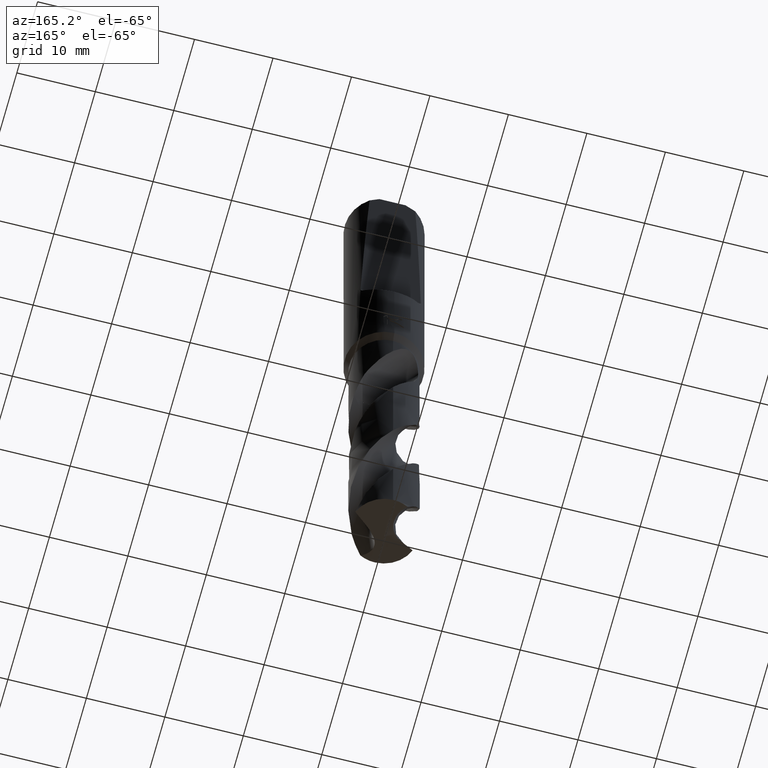
[diagram: clean part render]
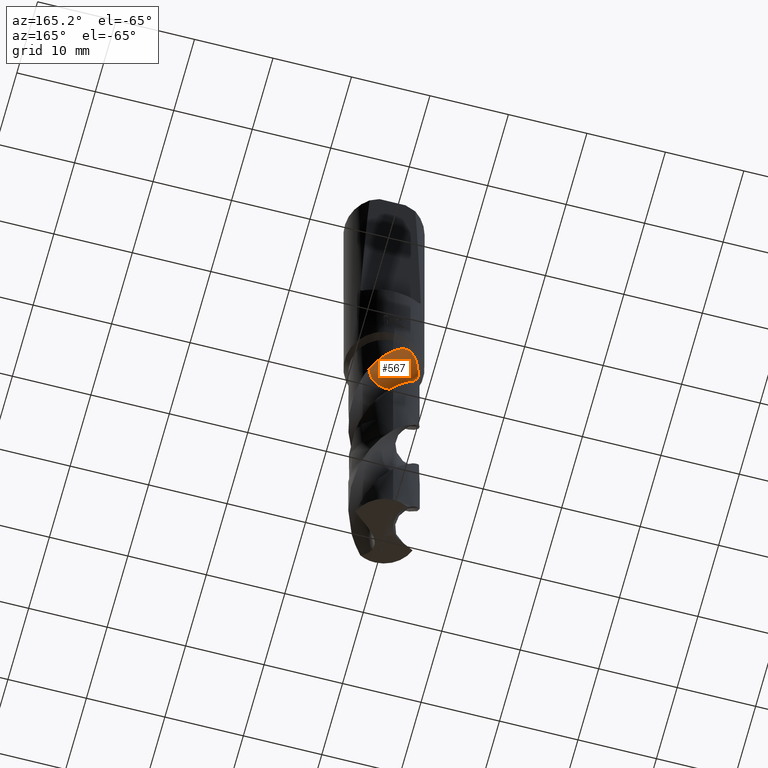
[diagram: same view with one face highlighted and labeled with its STEP entity id]
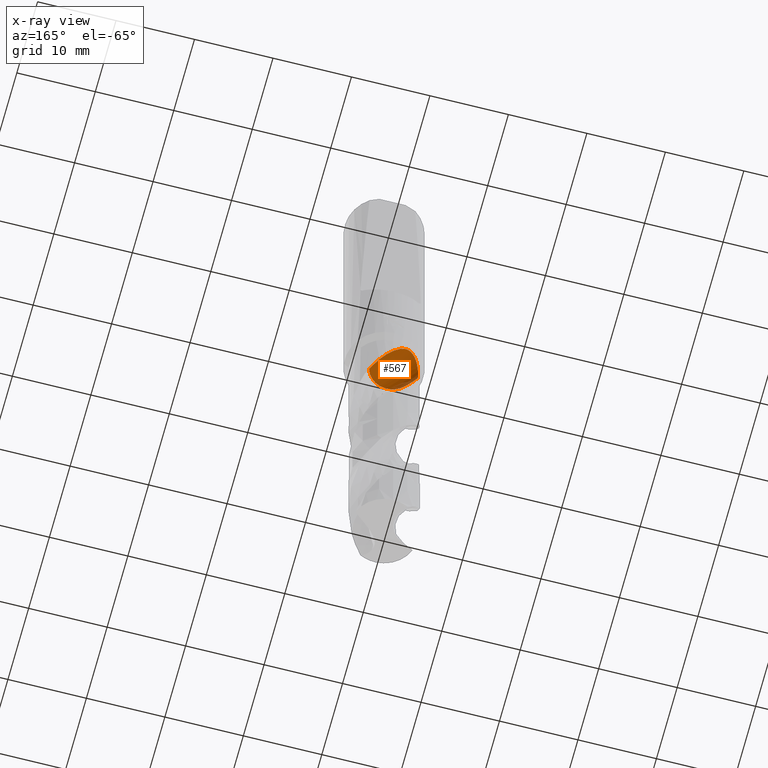
[diagram: x-ray of the same camera — body ghosted, the highlighted face saturated]
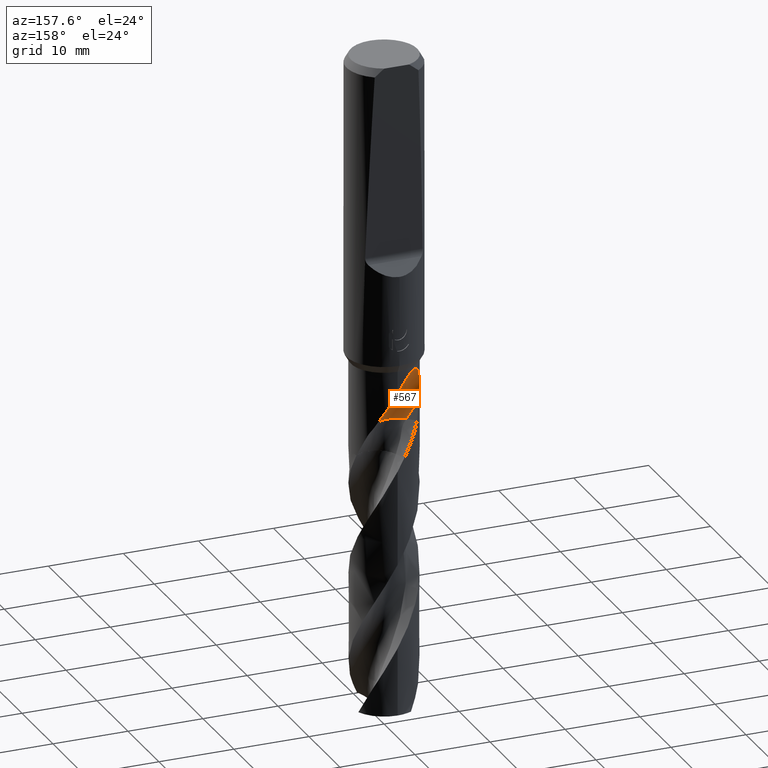
[diagram: same view with one face highlighted and labeled with its STEP entity id]
A machine part, auxiliary view. The second image highlights one B-rep face of the part: STEP entity #567.
The next image is the same camera in x-ray: the body ghosted, the highlighted face saturated — about 0% of this face is hidden behind the body in this view.
A second angle (auxiliary view) of the same face is appended — the face is thin or edge-on in the first view.
In plain terms, the highlighted face is a SurfaceOfRevolution surface.
Its self-contained STEP definition (entity closure, byte-faithful):
#361=VERTEX_POINT('',#931);
#367=VERTEX_POINT('',#937);
#505=VERTEX_POINT('',#1084);
#529=EDGE_CURVE('',#605,#505,#1109,.T.);
#567=ADVANCED_FACE('',(#1152),#1153,.F.);
#575=EDGE_CURVE('',#843,#361,#1161,.T.);
#605=VERTEX_POINT('',#1193);
#651=EDGE_CURVE('',#605,#367,#1243,.T.);
#811=EDGE_CURVE('',#505,#361,#1422,.T.);
#837=EDGE_CURVE('',#367,#843,#1451,.T.);
#843=VERTEX_POINT('',#1457);
#931=CARTESIAN_POINT('',(-3.58002551848704,2.5580104157297,-46.2484469929052));
#937=CARTESIAN_POINT('',(-0.4600083268246,1.35627961253618,-48.6578));
#1084=CARTESIAN_POINT('',(-1.29923035220927E-012,4.4,-43.9806989142759));
#1109=B_SPLINE_CURVE_WITH_KNOTS('',3,(#4983,#4984,#4985,#4986,#4987,#4988,#4989,#4990,#4991,#4992,#4993,#4994,#4995,#4996,#4997,#4998,#4999,#5000,#5001,#5002,#5003,#5004,#5005,#5006,#5007,#5008,#5009,#5010,#5011,#5012),.UNSPECIFIED.,.F.,.F.,(4,2,2,2,2,2,2,2,2,2,2,2,2,2,4),(0.0,2.15575313888055,3.33284473582783,4.39899348881997,5.63760174678789,7.12545374593737,8.41500043042723,8.99937898129075,9.4264884187666,9.8306588458001,10.3433731229215,11.0934949025042,12.1598812119526,12.8577163387087,13.5910936484015),.UNSPECIFIED.);
#1152=FACE_OUTER_BOUND('',#5132,.T.);
#1153=SURFACE_OF_REVOLUTION('',#5133,#5134);
#1161=CIRCLE('',#5154,19.1191435449186);
#1193=CARTESIAN_POINT('',(2.80374486055088,3.39101972228628,-48.6578));
#1243=CIRCLE('',#5474,2.93333333);
#1422=B_SPLINE_CURVE_WITH_KNOTS('',3,(#8122,#8123,#8124,#8125,#8126,#8127,#8128,#8129,#8130,#8131,#8132,#8133,#8134,#8135,#8136,#8137,#8138,#8139,#8140,#8141,#8142,#8143,#8144,#8145,#8146,#8147,#8148,#8149,#8150,#8151),.UNSPECIFIED.,.F.,.F.,(4,2,2,2,2,2,2,2,2,2,2,2,2,2,4),(0.0,2.15575313888055,3.33284473582783,4.39899348881997,5.63760174678789,7.12545374593737,8.41500043042723,8.99937898129075,9.4264884187666,9.8306588458001,10.3433731229215,11.0934949025042,12.1598812119526,12.8577163387087,13.5910936484015),.UNSPECIFIED.);
#1451=CIRCLE('',#8530,2.93333333);
#1457=CARTESIAN_POINT('',(-2.07417988905281,2.1791534409472,-48.6578));
#4983=CARTESIAN_POINT('',(2.80374486055088,3.39101972228628,-48.6578));
#4984=CARTESIAN_POINT('',(2.51350494731927,3.63099434104232,-48.0458061391126));
#4985=CARTESIAN_POINT('',(2.17979483710909,3.84431509835622,-47.4752303734491));
#4986=CARTESIAN_POINT('',(1.59790390863063,4.10578444379899,-46.5220445771286));
#4987=CARTESIAN_POINT('',(1.38851221785643,4.18099929289327,-46.1866817704438));
#4988=CARTESIAN_POINT('',(0.983156375472417,4.29341047373774,-45.5375063782041));
#4989=CARTESIAN_POINT('',(0.789002125642251,4.33312507625318,-45.2267196876942));
#4990=CARTESIAN_POINT('',(0.368739975777151,4.39044303258426,-44.5568919256811));
#4991=CARTESIAN_POINT('',(0.139121621929852,4.40389969584931,-44.192607771954));
#4992=CARTESIAN_POINT('',(-0.370802025101311,4.39317357640931,-43.4132836749414));
#4993=CARTESIAN_POINT('',(-0.67313525249552,4.3599980635326,-42.9698397246683));
#4994=CARTESIAN_POINT('',(-1.25614576165957,4.22601958514953,-42.238631296681));
#4995=CARTESIAN_POINT('',(-1.57870209371613,4.12394494139918,-41.881830271775));
#4996=CARTESIAN_POINT('',(-2.06688798948351,3.88800265043549,-41.5477219620063));
#4997=CARTESIAN_POINT('',(-2.22848079933628,3.7989289828202,-41.4651504079955));
#4998=CARTESIAN_POINT('',(-2.51162854133558,3.6155241182648,-41.4017206984103));
#4999=CARTESIAN_POINT('',(-2.62776332521679,3.53200017117507,-41.4005363425812));
#5000=CARTESIAN_POINT('',(-2.84407062843264,3.35995828412179,-41.4560506775219));
#5001=CARTESIAN_POINT('',(-2.93867264768447,3.27686549145371,-41.5081002657181));
#5002=CARTESIAN_POINT('',(-3.13118670528475,3.09477413472975,-41.6709574130903));
#5003=CARTESIAN_POINT('',(-3.22025241957447,3.00040982913683,-41.7911981049493));
#5004=CARTESIAN_POINT('',(-3.40268779839804,2.79435847422541,-42.1204544427672));
#5005=CARTESIAN_POINT('',(-3.48988827452868,2.68214878213362,-42.3646653384565));
#5006=CARTESIAN_POINT('',(-3.65386553697142,2.45683316401343,-43.0479402765375));
#5007=CARTESIAN_POINT('',(-3.71314710305357,2.36085957687008,-43.5345595436488));
#5008=CARTESIAN_POINT('',(-3.74248904481271,2.31392633598291,-44.4351721847013));
#5009=CARTESIAN_POINT('',(-3.73558990578626,2.32536574975377,-44.7938407452289));
#5010=CARTESIAN_POINT('',(-3.6868604368136,2.40192057397115,-45.5217587379512));
#5011=CARTESIAN_POINT('',(-3.64335080217983,2.46938445463448,-45.8882683668546));
#5012=CARTESIAN_POINT('',(-3.58002551848704,2.5580104157297,-46.2484469929052));
#5132=EDGE_LOOP('',(#8832,#8833,#8834,#8835,#8836));
#5133=(B_SPLINE_CURVE(3,(#8838,#8839,#8840,#8841,#8842,#8843,#8844,#8845,#8846),.UNSPECIFIED.,.F.,.F.)B_SPLINE_CURVE_WITH_KNOTS((4,1,3,1,4),(-2.85637112758216,-2.55358217970014,-2.25079323181811,-1.94800428393608,-1.64521533605405),.UNSPECIFIED.)RATIONAL_B_SPLINE_CURVE((1.09168114695951,1.03056038231984,0.969439617680165,1.03056038231984,1.09168114695951,1.03056038231984,0.969439617680165,1.03056038231984,1.09168114695951))BOUNDED_CURVE()REPRESENTATION_ITEM('')GEOMETRIC_REPRESENTATION_ITEM()CURVE());
#5134=AXIS1_PLACEMENT('',#8853,#8854);
#5154=AXIS2_PLACEMENT_3D('',#8858,#8859,#8860);
#5474=AXIS2_PLACEMENT_3D('',#8922,#8923,#8924);
#8122=CARTESIAN_POINT('',(2.80374486055088,3.39101972228628,-48.6578));
#8123=CARTESIAN_POINT('',(2.51350494731927,3.63099434104232,-48.0458061391126));
#8124=CARTESIAN_POINT('',(2.17979483710909,3.84431509835622,-47.4752303734491));
#8125=CARTESIAN_POINT('',(1.59790390863063,4.10578444379899,-46.5220445771286));
#8126=CARTESIAN_POINT('',(1.38851221785643,4.18099929289327,-46.1866817704438));
#8127=CARTESIAN_POINT('',(0.983156375472417,4.29341047373774,-45.5375063782041));
#8128=CARTESIAN_POINT('',(0.789002125642251,4.33312507625318,-45.2267196876942));
#8129=CARTESIAN_POINT('',(0.368739975777151,4.39044303258426,-44.5568919256811));
#8130=CARTESIAN_POINT('',(0.139121621929852,4.40389969584931,-44.192607771954));
#8131=CARTESIAN_POINT('',(-0.370802025101311,4.39317357640931,-43.4132836749414));
#8132=CARTESIAN_POINT('',(-0.67313525249552,4.3599980635326,-42.9698397246683));
#8133=CARTESIAN_POINT('',(-1.25614576165957,4.22601958514953,-42.238631296681));
#8134=CARTESIAN_POINT('',(-1.57870209371613,4.12394494139918,-41.881830271775));
#8135=CARTESIAN_POINT('',(-2.06688798948351,3.88800265043549,-41.5477219620063));
#8136=CARTESIAN_POINT('',(-2.22848079933628,3.7989289828202,-41.4651504079955));
#8137=CARTESIAN_POINT('',(-2.51162854133558,3.6155241182648,-41.4017206984103));
#8138=CARTESIAN_POINT('',(-2.62776332521679,3.53200017117507,-41.4005363425812));
#8139=CARTESIAN_POINT('',(-2.84407062843264,3.35995828412179,-41.4560506775219));
#8140=CARTESIAN_POINT('',(-2.93867264768447,3.27686549145371,-41.5081002657181));
#8141=CARTESIAN_POINT('',(-3.13118670528475,3.09477413472975,-41.6709574130903));
#8142=CARTESIAN_POINT('',(-3.22025241957447,3.00040982913683,-41.7911981049493));
#8143=CARTESIAN_POINT('',(-3.40268779839804,2.79435847422541,-42.1204544427672));
#8144=CARTESIAN_POINT('',(-3.48988827452868,2.68214878213362,-42.3646653384565));
#8145=CARTESIAN_POINT('',(-3.65386553697142,2.45683316401343,-43.0479402765375));
#8146=CARTESIAN_POINT('',(-3.71314710305357,2.36085957687008,-43.5345595436488));
#8147=CARTESIAN_POINT('',(-3.74248904481271,2.31392633598291,-44.4351721847013));
#8148=CARTESIAN_POINT('',(-3.73558990578626,2.32536574975377,-44.7938407452289));
#8149=CARTESIAN_POINT('',(-3.6868604368136,2.40192057397115,-45.5217587379512));
#8150=CARTESIAN_POINT('',(-3.64335080217983,2.46938445463448,-45.8882683668546));
#8151=CARTESIAN_POINT('',(-3.58002551848704,2.5580104157297,-46.2484469929052));
#8530=AXIS2_PLACEMENT_3D('',#9158,#9159,#9160);
#8832=ORIENTED_EDGE('',*,*,#529,.F.);
#8833=ORIENTED_EDGE('',*,*,#651,.T.);
#8834=ORIENTED_EDGE('',*,*,#837,.T.);
#8835=ORIENTED_EDGE('',*,*,#575,.T.);
#8836=ORIENTED_EDGE('',*,*,#811,.F.);
#8838=CARTESIAN_POINT('',(-2.07417988905281,2.1791534409472,-48.6578));
#8839=CARTESIAN_POINT('',(-1.66790671234418,1.77287355481234,-48.6578));
#8840=CARTESIAN_POINT('',(-0.611477154515455,1.19558836538587,-48.6578));
#8841=CARTESIAN_POINT('',(0.585717273520008,1.3221865567876,-48.6578));
#8842=CARTESIAN_POINT('',(1.11699310538678,1.54097236634789,-48.6578));
#8843=CARTESIAN_POINT('',(1.64826893725356,1.75975817590817,-48.6578));
#8844=CARTESIAN_POINT('',(2.58742990327822,2.5129369597842,-48.6578));
#8845=CARTESIAN_POINT('',(2.93097315926133,3.66674787663924,-48.6578));
#8846=CARTESIAN_POINT('',(2.93332586488889,4.24130484054005,-48.6578));
#8853=CARTESIAN_POINT('',(-1.49154508875708,21.26666665,-49.5900156804732));
#8854=DIRECTION('',(0.847998304005088,-0.0,0.52999894000318));
#8858=CARTESIAN_POINT('',(-1.49154508875708,21.26666665,-49.5900156804732));
#8859=DIRECTION('',(-0.847998304005088,1.94380786969579E-017,-0.52999894000318));
#8860=DIRECTION('',(-0.0535598124395258,-0.994880693103216,0.0856956999032413));
#8922=CARTESIAN_POINT('',(1.71269515501595E-005,4.25331620304845,-48.6578));
#8923=DIRECTION('',(0.0,0.0,-1.0));
#8924=DIRECTION('',(0.707100942428954,0.70711261989593,0.0));
#9158=CARTESIAN_POINT('',(1.71269515501595E-005,4.25331620304845,-48.6578));
#9159=DIRECTION('',(0.0,0.0,-1.0));
#9160=DIRECTION('',(0.707100942428954,0.70711261989593,0.0));